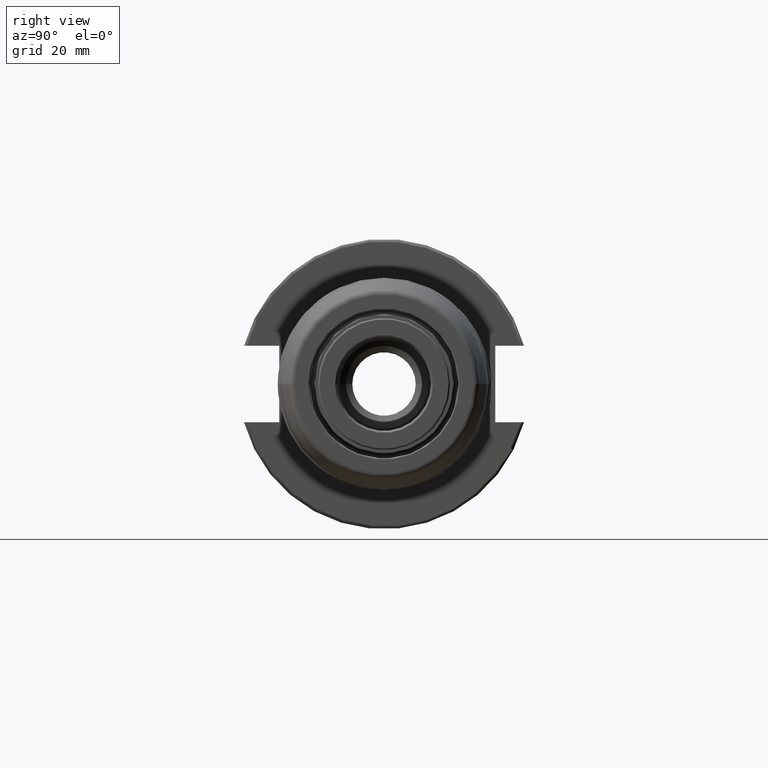
[diagram: clean part render]
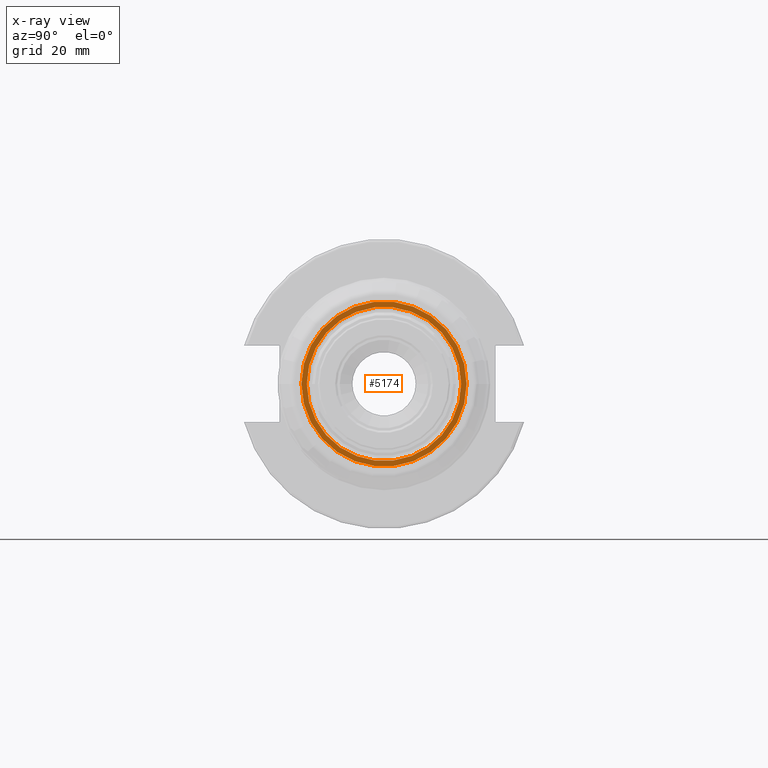
[diagram: x-ray — body ghosted, one internal face saturated and labeled with its STEP entity id]
A machine part, right view, then the same camera in x-ray: the body is ghosted and one INTERNAL B-rep face — a face not visible from any outside direction — is saturated and labeled: STEP entity #5174.
In plain terms, the highlighted planar face has unit normal (1, 0, 0).
Its self-contained STEP definition (entity closure, byte-faithful):
#2996=CARTESIAN_POINT('',(-5.3E1,0.E0,0.E0));
#2997=DIRECTION('',(1.E0,0.E0,0.E0));
#2998=DIRECTION('',(0.E0,1.E0,0.E0));
#2999=AXIS2_PLACEMENT_3D('',#2996,#2997,#2998);
#3010=CARTESIAN_POINT('',(-5.3E1,0.E0,0.E0));
#3011=DIRECTION('',(1.E0,0.E0,0.E0));
#3012=DIRECTION('',(0.E0,-1.E0,0.E0));
#3013=AXIS2_PLACEMENT_3D('',#3010,#3011,#3012);
#3046=CARTESIAN_POINT('',(-5.3E1,0.E0,0.E0));
#3047=DIRECTION('',(-1.E0,0.E0,0.E0));
#3048=DIRECTION('',(0.E0,1.E0,0.E0));
#3049=AXIS2_PLACEMENT_3D('',#3046,#3047,#3048);
#3116=CARTESIAN_POINT('',(-5.3E1,0.E0,0.E0));
#3117=DIRECTION('',(1.E0,0.E0,0.E0));
#3118=DIRECTION('',(0.E0,1.E0,0.E0));
#3119=AXIS2_PLACEMENT_3D('',#3116,#3117,#3118);
#4781=CARTESIAN_POINT('',(-5.3E1,2.8E1,0.E0));
#4782=CARTESIAN_POINT('',(-5.3E1,-2.8E1,0.E0));
#4783=VERTEX_POINT('',#4781);
#4784=VERTEX_POINT('',#4782);
#4785=CARTESIAN_POINT('',(-5.3E1,2.616369776621E1,0.E0));
#4786=CARTESIAN_POINT('',(-5.3E1,-2.616369776621E1,0.E0));
#4787=VERTEX_POINT('',#4785);
#4788=VERTEX_POINT('',#4786);
#5159=CARTESIAN_POINT('',(-5.3E1,0.E0,0.E0));
#5160=DIRECTION('',(1.E0,0.E0,0.E0));
#5161=DIRECTION('',(0.E0,-1.E0,0.E0));
#5162=AXIS2_PLACEMENT_3D('',#5159,#5160,#5161);
#5163=PLANE('',#5162);
#5165=ORIENTED_EDGE('',*,*,#5164,.F.);
#5167=ORIENTED_EDGE('',*,*,#5166,.T.);
#5168=EDGE_LOOP('',(#5165,#5167));
#5169=FACE_OUTER_BOUND('',#5168,.F.);
#5170=ORIENTED_EDGE('',*,*,#5139,.F.);
#5171=ORIENTED_EDGE('',*,*,#5153,.F.);
#5172=EDGE_LOOP('',(#5170,#5171));
#5173=FACE_BOUND('',#5172,.F.);
#5174=ADVANCED_FACE('',(#5169,#5173),#5163,.F.);
#3000=CIRCLE('',#2999,2.616369776621E1);
#3014=CIRCLE('',#3013,2.616369776621E1);
#3050=CIRCLE('',#3049,2.8E1);
#3120=CIRCLE('',#3119,2.8E1);
#5139=EDGE_CURVE('',#4787,#4788,#3000,.T.);
#5153=EDGE_CURVE('',#4788,#4787,#3014,.T.);
#5164=EDGE_CURVE('',#4783,#4784,#3050,.T.);
#5166=EDGE_CURVE('',#4783,#4784,#3120,.T.);